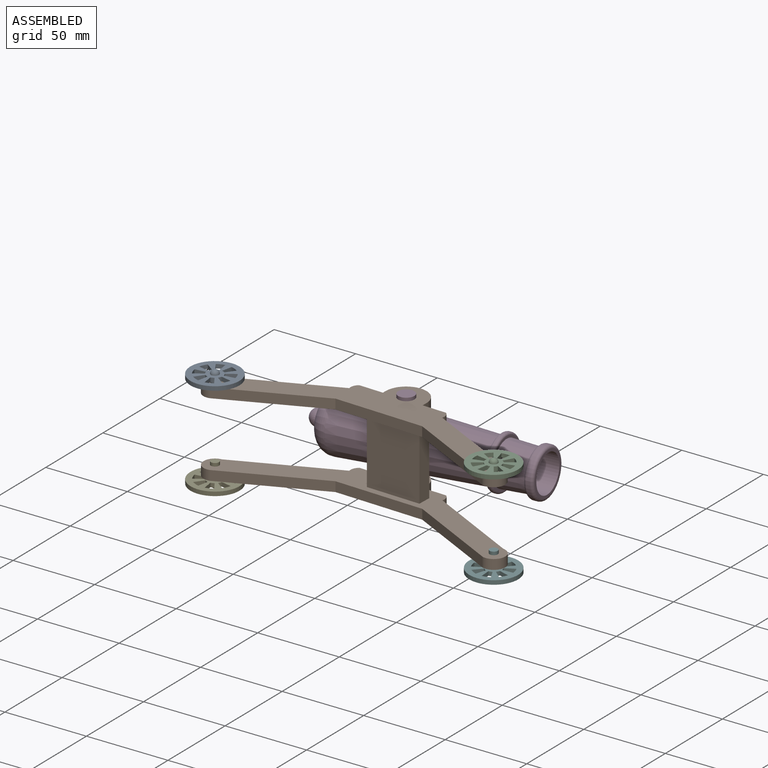
[diagram: assembled view]
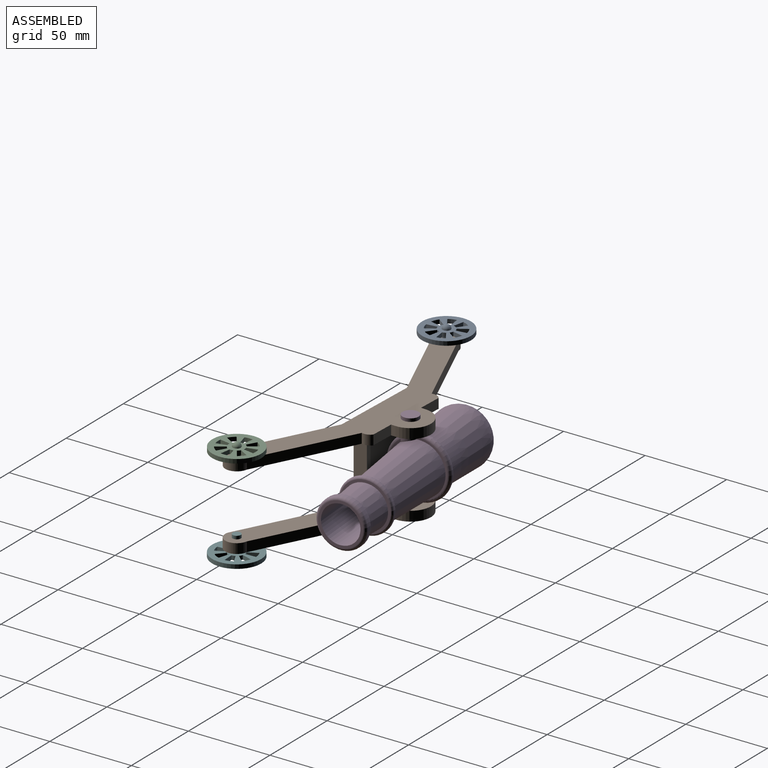
[diagram: assembled view, second angle]
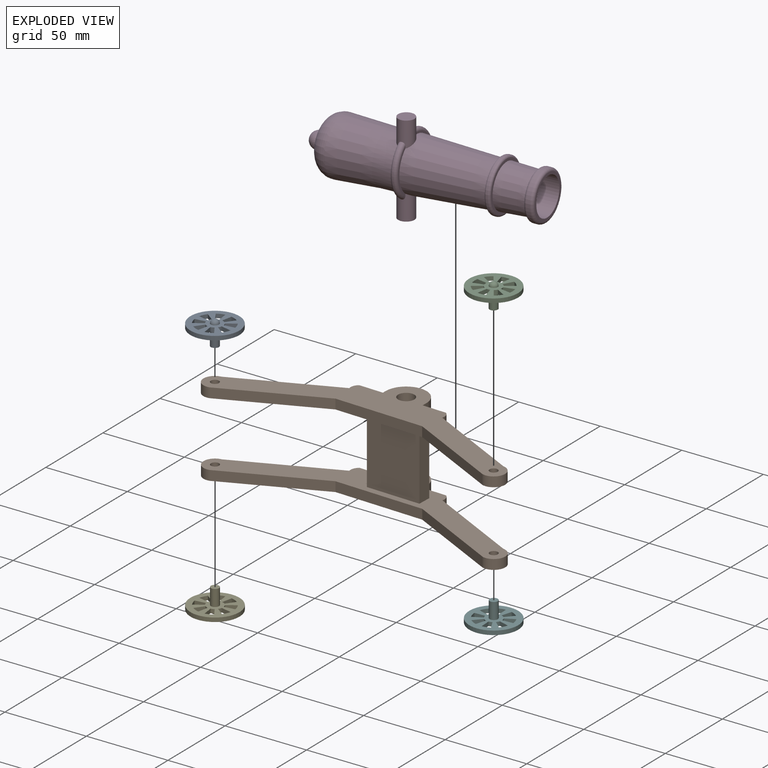
[diagram: exploded view]
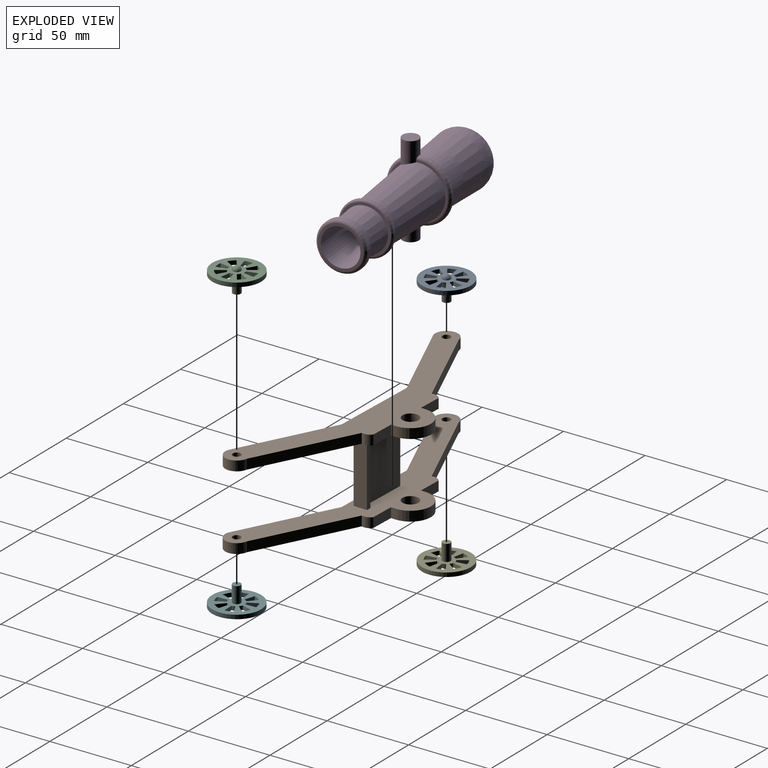
[diagram: exploded view, second angle]
ASSEMBLY  parts=6 mates=5
PART A: 38 faces, bbox 30x30x15 mm
  f0: plane 30x30mm, normal (0,0,1), area 500mm2, adj f2,f3,f4,f5,f6,f7,f8,f9
  f1: plane 30x30mm, normal (0,0,-1), area 500mm2, adj f2,f3,f4,f5,f6,f7,f8,f9
  f2: cylinder r=15mm len=30mm, axis (0,0,-1), area 235.6mm2, adj f0,f1
  f3: cylinder r=5mm len=2.5mm, axis (0,0,-1), area 5.5mm2, adj f0,f1,f4,f6
  f4: plane 6.4x2.5mm, normal (-0.98,-0.17,0), area 16.2mm2, adj f0,f1,f3,f5
  f5: cylinder r=11.5mm len=4.6mm, axis (0,0,-1), area 12.5mm2, adj f0,f1,f4,f6
  f6: plane 5.32x3.73mm, normal (0.82,0.57,0), area 16.3mm2, adj f0,f1,f3,f5
  f7: cylinder r=5mm len=2.5mm, axis (0,0,-1), area 5.5mm2, adj f0,f1,f8,f10
  f8: plane 5.32x3.73mm, normal (-0.82,0.57,0), area 16.3mm2, adj f0,f1,f7,f9
  f9: cylinder r=11.5mm len=4.6mm, axis (0,0,-1), area 12.5mm2, adj f0,f1,f8,f10
  f10: plane 6.4x2.5mm, normal (0.98,-0.17,0), area 16.2mm2, adj f0,f1,f7,f9
  f11: cylinder r=5mm len=2.5mm, axis (0,0,-1), area 5.5mm2, adj f0,f1,f12,f14
  f12: plane 6.4x2.5mm, normal (-0.17,0.98,0), area 16.2mm2, adj f0,f1,f11,f13
  f13: cylinder r=11.5mm len=4.6mm, axis (0,0,-1), area 12.5mm2, adj f0,f1,f12,f14
  f14: plane 5.32x3.73mm, normal (0.57,-0.82,0), area 16.3mm2, adj f0,f1,f11,f13
  f15: cylinder r=5mm len=2.5mm, axis (0,0,-1), area 5.5mm2, adj f0,f1,f16,f18
  f16: plane 5.32x3.73mm, normal (0.57,0.82,0), area 16.3mm2, adj f0,f1,f15,f17
  f17: cylinder r=11.5mm len=4.6mm, axis (0,0,-1), area 12.5mm2, adj f0,f1,f16,f18
  f18: plane 6.4x2.5mm, normal (-0.17,-0.98,0), area 16.2mm2, adj f0,f1,f15,f17
  f19: cylinder r=5mm len=2.5mm, axis (0,0,-1), area 5.5mm2, adj f0,f1,f20,f22
  f20: plane 5.32x3.73mm, normal (-0.57,-0.82,0), area 16.3mm2, adj f0,f1,f19,f21
  f21: cylinder r=11.5mm len=4.6mm, axis (0,0,-1), area 12.5mm2, adj f0,f1,f20,f22
  f22: plane 6.4x2.5mm, normal (0.17,0.98,0), area 16.2mm2, adj f0,f1,f19,f21
  f23: cylinder r=11.5mm len=4.6mm, axis (0,0,-1), area 12.5mm2, adj f0,f1,f24,f26
  f24: plane 5.32x3.73mm, normal (-0.57,0.82,0), area 16.3mm2, adj f0,f1,f23,f25
  f25: cylinder r=5mm len=2.5mm, axis (0,0,-1), area 5.5mm2, adj f0,f1,f24,f26
  f26: plane 6.4x2.5mm, normal (0.17,-0.98,0), area 16.2mm2, adj f0,f1,f23,f25
  f27: cylinder r=5mm len=2.5mm, axis (0,0,-1), area 5.5mm2, adj f0,f1,f28,f30
  f28: plane 5.32x3.73mm, normal (0.82,-0.57,0), area 16.3mm2, adj f0,f1,f27,f29
  f29: cylinder r=11.5mm len=4.6mm, axis (0,0,-1), area 12.5mm2, adj f0,f1,f28,f30
  f30: plane 6.4x2.5mm, normal (-0.98,0.17,0), area 16.2mm2, adj f0,f1,f27,f29
  f31: cylinder r=5mm len=2.5mm, axis (0,0,-1), area 5.5mm2, adj f0,f1,f32,f34
  f32: plane 6.4x2.5mm, normal (0.98,0.17,0), area 16.2mm2, adj f0,f1,f31,f33
  f33: cylinder r=11.5mm len=4.6mm, axis (0,0,-1), area 12.5mm2, adj f0,f1,f32,f34
  f34: plane 5.32x3.73mm, normal (-0.82,-0.57,0), area 16.3mm2, adj f0,f1,f31,f33
  f35: cylinder r=2.5mm len=10mm, axis (0,0,1), area 157.1mm2, adj f1,f36
  f36: plane 5x5mm, normal (0,0,-1), area 19.6mm2, adj f35
  f37: sphere r=2.5mm, area 39.3mm2, adj f0
PART B: 44 faces, bbox 189.5x62.9x51.8 mm
  f0: plane 189.38x62.94mm, normal (0,0,-1), area 3125.9mm2, adj f1,f2,f3,f4,f5,f6,f7,f8
  f1: plane 54.55x6mm, normal (0,-1,0), area 327.3mm2, adj f0,f2,f14,f18
  f2: plane 58.56x27.31mm, normal (0.42,-0.91,0), area 387.7mm2, adj f0,f1,f3,f18
  f3: cylinder r=7.07mm len=14.08mm, axis (0,0,1), area 138.9mm2, adj f0,f2,f4,f18
  f4: plane 59.26x27.63mm, normal (-0.42,0.91,0), area 392.3mm2, adj f0,f3,f5,f18
  f5: cylinder r=5.38mm len=6mm, axis (0,0,1), area 39.2mm2, adj f0,f4,f6,f18
  f6: plane 14.78x6mm, normal (0,1,0), area 88.7mm2, adj f0,f5,f7,f18
  f7: plane 6x2.9mm, normal (-1,0,0), area 17.4mm2, adj f0,f6,f8,f18
  f8: cylinder r=12.5mm len=25mm, axis (0,0,1), area 235.6mm2, adj f0,f7,f9,f18
  f9: plane 6x2.9mm, normal (1,0,0), area 17.4mm2, adj f0,f8,f10,f18
  f10: plane 14.78x6mm, normal (0,1,0), area 88.7mm2, adj f0,f9,f11,f18
  f11: cylinder r=5.38mm len=6mm, axis (0,0,1), area 39.2mm2, adj f0,f10,f12,f18
  f12: plane 59.26x27.63mm, normal (0.42,0.91,0), area 392.3mm2, adj f0,f11,f13,f18
  f13: cylinder r=7.07mm len=14.08mm, axis (0,0,1), area 138.9mm2, adj f0,f12,f14,f18
  f14: plane 58.56x27.31mm, normal (-0.42,-0.91,0), area 387.7mm2, adj f0,f1,f13,f18
  f15: cylinder r=5mm len=10mm, axis (0,0,1), area 188.5mm2, adj f0,f18
  f16: cylinder r=2.5mm len=6mm, axis (0,0,1), area 94.2mm2, adj f0,f18
  f17: cylinder r=2.5mm len=6mm, axis (0,0,1), area 94.2mm2, adj f0,f18
  f18: plane 189.38x62.94mm, normal (0,0,1), area 3285.8mm2, adj f1,f2,f3,f4,f5,f6,f7,f8
  f19: plane 39.78x33mm, normal (0,-1,0), area 1312.7mm2, adj f0,f20,f24,f25
  f20: plane 39.78x4.5mm, normal (-1,0,0), area 179mm2, adj f0,f19,f21,f25
  f21: plane 39.78x30mm, normal (0,1,0), area 1193.4mm2, adj f0,f20,f22,f25
  f22: plane 39.78x3.78mm, normal (-1,0,0), area 150.4mm2, adj f0,f21,f23,f25
  f23: plane 39.78x3mm, normal (0,1,0), area 119.3mm2, adj f0,f22,f24,f25
  f24: plane 39.78x8.28mm, normal (1,0,0), area 329.4mm2, adj f0,f19,f23,f25
  f25: plane 189.38x62.94mm, normal (0,0,1), area 3125.9mm2, adj f19,f20,f21,f22,f23,f24,f27,f28
  f26: plane 189.38x62.94mm, normal (0,0,-1), area 3285.8mm2, adj f27,f28,f29,f30,f31,f32,f33,f34
  f27: plane 58.56x27.31mm, normal (0.42,-0.91,0), area 387.7mm2, adj f25,f26,f28,f40
  f28: cylinder r=7.07mm len=14.08mm, axis (0,0,1), area 138.9mm2, adj f25,f26,f27,f29
  f29: plane 59.26x27.63mm, normal (-0.42,0.91,0), area 392.3mm2, adj f25,f26,f28,f30
  f30: cylinder r=5.38mm len=6mm, axis (0,0,1), area 39.2mm2, adj f25,f26,f29,f31
  f31: plane 14.78x6mm, normal (0,1,0), area 88.7mm2, adj f25,f26,f30,f32
  f32: plane 6x2.9mm, normal (-1,0,0), area 17.4mm2, adj f25,f26,f31,f33
  f33: cylinder r=12.5mm len=25mm, axis (0,0,1), area 235.6mm2, adj f25,f26,f32,f34
  f34: plane 6x2.9mm, normal (1,0,0), area 17.4mm2, adj f25,f26,f33,f35
  f35: plane 14.78x6mm, normal (0,1,0), area 88.7mm2, adj f25,f26,f34,f36
  f36: cylinder r=5.38mm len=6mm, axis (0,0,1), area 39.2mm2, adj f25,f26,f35,f37
  f37: plane 59.26x27.63mm, normal (0.42,0.91,0), area 392.3mm2, adj f25,f26,f36,f38
  f38: cylinder r=7.07mm len=14.08mm, axis (0,0,1), area 138.9mm2, adj f25,f26,f37,f39
  f39: plane 58.56x27.31mm, normal (-0.42,-0.91,0), area 387.7mm2, adj f25,f26,f38,f40
  f40: plane 54.55x6mm, normal (0,-1,0), area 327.3mm2, adj f25,f26,f27,f39
  f41: cylinder r=5mm len=10mm, axis (0,0,1), area 188.5mm2, adj f25,f26
  f42: cylinder r=2.5mm len=6mm, axis (0,0,1), area 94.2mm2, adj f25,f26
  f43: cylinder r=2.5mm len=6mm, axis (0,0,1), area 94.2mm2, adj f25,f26
PART C: same geometry as A
PART D: 35 faces, bbox 138.2x41.3x56 mm
  f0: plane 34.32x18.12mm, normal (1,0,0), area 59.5mm2, adj f1,f13,f30,f31
  f1: torus R=17.16mm, axis (-1,0,0), area 176.7mm2, adj f0,f16,f30,f31
  f2: cylinder r=19.06mm len=31.82mm, axis (-1,0,0), area 7.5mm2, adj f15,f17,f30,f31
  f3: torus R=17.16mm, axis (-1,0,0), area 176.5mm2, adj f16,f18,f30,f31
  f4: plane 27.71x7.04mm, normal (-1,0,0), area 33.4mm2, adj f17,f19,f30,f31
  f5: plane 26.06x26.06mm, normal (-1,0,0), area 22.6mm2, adj f6,f27
  f6: torus R=12.75mm, axis (-1,0,0), area 51mm2, adj f5,f7
  f7: cone r=13.3mm half-angle=3deg, axis (-1,0,0), area 1465.4mm2, adj f6,f8
  f8: plane 29.57x29.57mm, normal (1,0,0), area 130.9mm2, adj f7,f9
  f9: torus R=14.79mm, axis (-1,0,0), area 200.3mm2, adj f8,f10
  f10: cylinder r=16.09mm len=32.17mm, axis (-1,0,0), area 91mm2, adj f9,f11
  f11: torus R=14.79mm, axis (-1,0,0), area 200.3mm2, adj f10,f12
  f12: plane 29.57x29.57mm, normal (-1,0,0), area 115.5mm2, adj f11,f13
  f13: cone r=16.06mm half-angle=3deg, axis (-1,0,0), area 4525.2mm2, adj f0,f12,f14,f30,f31
  f14: plane 27.84x7.12mm, normal (1,0,0), area 33.7mm2, adj f13,f15,f30,f31
  f15: torus R=17.16mm, axis (-1,0,0), area 107.3mm2, adj f2,f14,f30,f31
  f16: cylinder r=19.06mm len=38.12mm, axis (-1,0,0), area 12.2mm2, adj f1,f3,f30,f31
  f17: torus R=17.16mm, axis (-1,0,0), area 106.9mm2, adj f2,f4,f30,f31
  f18: plane 34.32x18.04mm, normal (-1,0,0), area 59.3mm2, adj f3,f19,f30,f31
  f19: cylinder r=16.06mm len=32.12mm, axis (-1,0,0), area 1155.6mm2, adj f4,f18,f20,f30,f31
  f20: torus R=20.06mm, axis (-1,0,0), area 21.1mm2, adj f19,f21
  f21: cone r=17.45mm half-angle=3deg, axis (-1,0,0), area 2780.5mm2, adj f20,f22
  f22: torus R=7.46mm, axis (-1,0,0), area 1422.2mm2, adj f21,f23
  f23: plane 14.92x14.92mm, normal (-1,0,0), area 118.3mm2, adj f22,f28
  f24: plane 26.06x26.06mm, normal (1,0,0), area 117.9mm2, adj f25,f33
  f25: torus R=13.03mm, axis (-1,0,0), area 251.8mm2, adj f24,f26
  f26: cylinder r=14.83mm len=29.66mm, axis (-1,0,0), area 205mm2, adj f25,f27
  f27: torus R=13.03mm, axis (-1,0,0), area 251.8mm2, adj f5,f26
  f28: sphere r=5.2mm, area 267.9mm2, adj f23
  f29: plane 10x10mm, normal (0,0,1), area 78.5mm2, adj f30
  f30: cylinder r=5mm len=15.53mm, axis (0,0,1), area 398mm2, adj f0,f1,f2,f3,f4,f13,f14,f15
  f31: cylinder r=5mm len=15.53mm, axis (0,0,1), area 398mm2, adj f0,f1,f2,f3,f4,f13,f14,f15
  f32: plane 10x10mm, normal (0,0,-1), area 78.5mm2, adj f31
  f33: cylinder r=11.5mm len=90mm, axis (1,0,0), area 6503.1mm2, adj f24,f34
  f34: plane 23x23mm, normal (1,0,0), area 415.5mm2, adj f33
PART E: same geometry as A
PART F: same geometry as A
PLACE A rot(axis=(0,0,-1),2deg) t=(-126.19,-50.06,125.98)mm
PLACE B rot(axis=(0,0,-1),2deg) t=(-87.82,-2.47,98.04)mm fixed
PLACE C rot(axis=(0,0,-1),64.7deg) t=(48.95,-56.06,125.98)mm
PLACE D rot(axis=(0,0,1),4.8deg) t=(-88.25,-8.46,97.88)mm
PLACE E rot(axis=(1,-0.02,0),180deg) t=(-126.13,-50.06,70.1)mm
PLACE F rot(axis=(1,-0.06,0),180deg) t=(49.02,-56.06,70.1)mm
MATE revolute B.f28 <-> E.f2  axis (0,0,1) through (-126.13,-50.06,78.15)mm
MATE revolute A.f2 <-> B.f3  axis (0,0,1) through (-126.19,-50.06,120.98)mm
MATE revolute C.f2 <-> B.f13  axis (0,0,1) through (48.95,-56.06,120.98)mm
MATE revolute F.f2 <-> B.f38  axis (0,0,-1) through (49.02,-56.06,75.1)mm
MATE revolute D.f30 <-> B.f33  axis (0,0,1) through (-37.07,-9.72,77.69)mm
